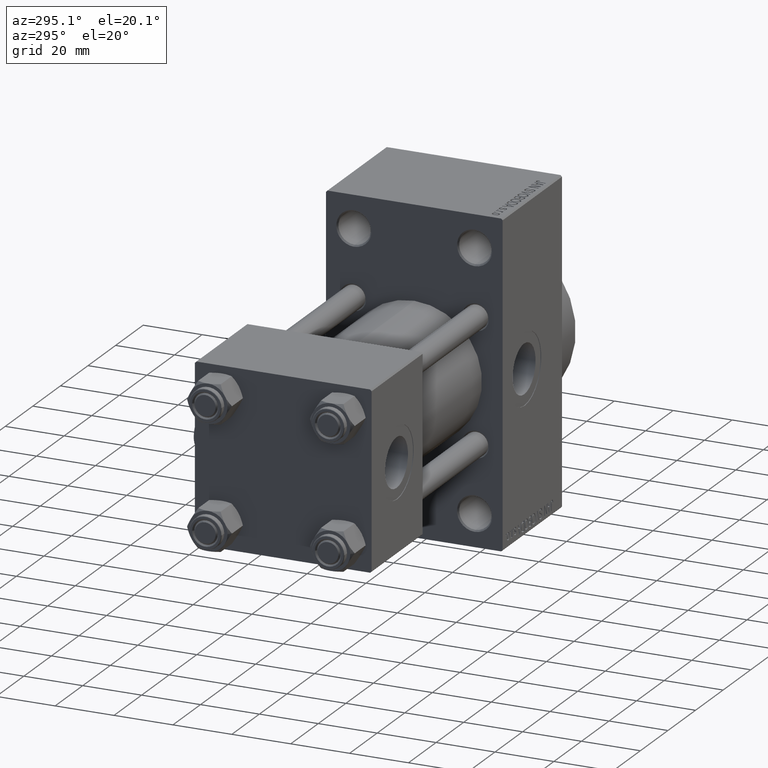
[diagram: clean part render]
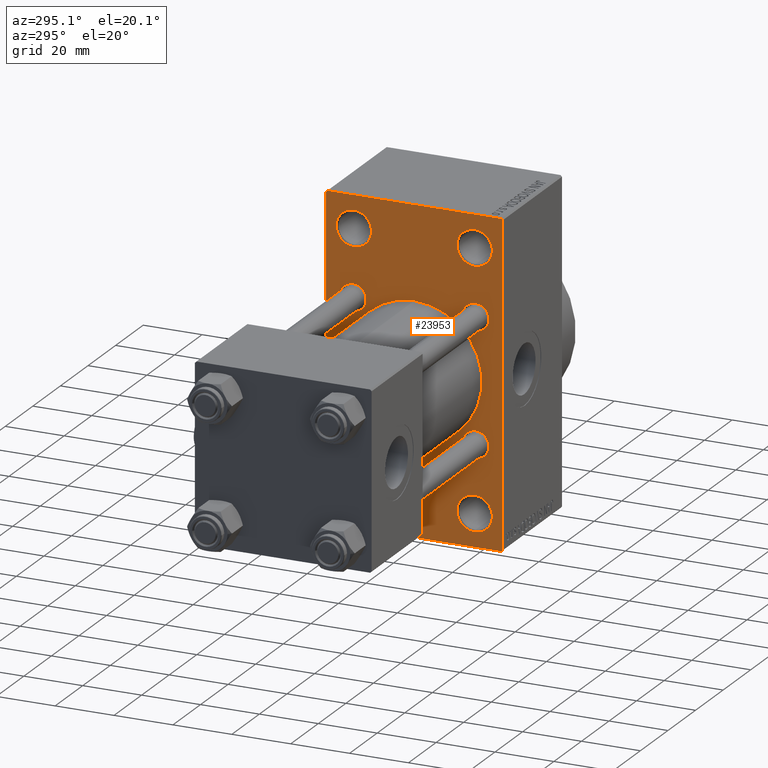
[diagram: same view with one face highlighted and labeled with its STEP entity id]
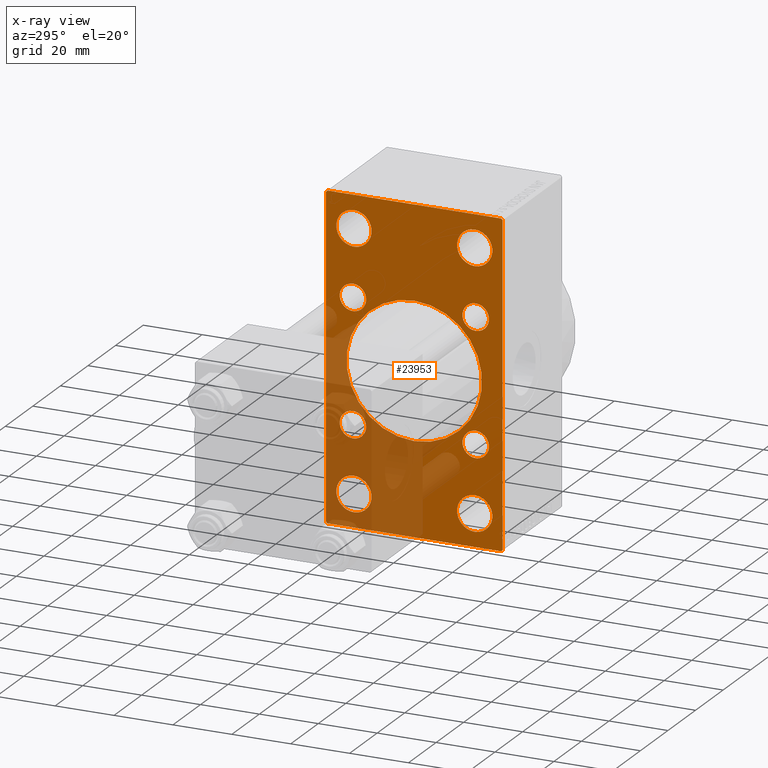
[diagram: x-ray of the same camera — body ghosted, the highlighted face saturated]
A machine part, auxiliary view. The second image highlights one B-rep face of the part: STEP entity #23953.
The next image is the same camera in x-ray: the body ghosted, the highlighted face saturated — about 33% of this face is hidden behind the body in this view.
In plain terms, the highlighted planar face has unit normal (-1, 0, 0).
Its self-contained STEP definition (entity closure, byte-faithful):
#198 = VERTEX_POINT ( 'NONE', #35853 ) ;
#791 = ORIENTED_EDGE ( 'NONE', *, *, #36772, .T. ) ;
#1038 = CARTESIAN_POINT ( 'NONE',  ( 95.00000000000000000, 20.84999999999999787, -20.85000000000000142 ) ) ;
#1324 = DIRECTION ( 'NONE',  ( 0.000000000000000000, 0.000000000000000000, 1.000000000000000000 ) ) ;
#1858 = CARTESIAN_POINT ( 'NONE',  ( 95.00000000000000000, -20.50000000000000000, -43.50000000000000000 ) ) ;
#2257 = EDGE_CURVE ( 'NONE', #32564, #13492, #19038, .T. ) ;
#2283 = CIRCLE ( 'NONE', #48432, 5.999999999999894307 ) ;
#2488 = VERTEX_POINT ( 'NONE', #21745 ) ;
#2534 = EDGE_CURVE ( 'NONE', #38986, #11928, #15234, .T. ) ;
#2563 = DIRECTION ( 'NONE',  ( 0.000000000000000000, 0.000000000000000000, 1.000000000000000000 ) ) ;
#2871 = FACE_BOUND ( 'NONE', #7190, .T. ) ;
#3358 = EDGE_CURVE ( 'NONE', #13213, #8336, #6562, .T. ) ;
#3493 = EDGE_LOOP ( 'NONE', ( #40665, #14927 ) ) ;
#3502 = VERTEX_POINT ( 'NONE', #11264 ) ;
#4005 = FACE_BOUND ( 'NONE', #27206, .T. ) ;
#4120 = VECTOR ( 'NONE', #11021, 1000.000000000000000 ) ;
#4378 = LINE ( 'NONE', #23814, #38313 ) ;
#4781 = DIRECTION ( 'NONE',  ( 1.000000000000000000, -0.000000000000000000, 0.000000000000000000 ) ) ;
#5105 = DIRECTION ( 'NONE',  ( 1.000000000000000000, -0.000000000000000000, 0.000000000000000000 ) ) ;
#5528 = DIRECTION ( 'NONE',  ( 0.000000000000000000, 0.000000000000000000, 1.000000000000000000 ) ) ;
#5676 = CIRCLE ( 'NONE', #48651, 5.999999999999894307 ) ;
#5695 = EDGE_CURVE ( 'NONE', #28085, #11928, #34769, .T. ) ;
#6305 = CARTESIAN_POINT ( 'NONE',  ( 95.00000000000000000, 20.84999999999999787, 20.85000000000000142 ) ) ;
#6562 = CIRCLE ( 'NONE', #26419, 4.500000000000007105 ) ;
#6757 = EDGE_CURVE ( 'NONE', #21369, #23109, #23143, .T. ) ;
#6949 = LINE ( 'NONE', #21895, #8973 ) ;
#7190 = EDGE_LOOP ( 'NONE', ( #48116, #25353 ) ) ;
#7506 = CARTESIAN_POINT ( 'NONE',  ( 95.00000000000000000, -20.84999999999999076, 25.35000000000001208 ) ) ;
#7518 = DIRECTION ( 'NONE',  ( 0.000000000000000000, 0.000000000000000000, 1.000000000000000000 ) ) ;
#7541 = CIRCLE ( 'NONE', #37004, 5.999999999999894307 ) ;
#7826 = CARTESIAN_POINT ( 'NONE',  ( 95.00000000000000000, 29.50000000000002132, 54.49999999999999289 ) ) ;
#7951 = DIRECTION ( 'NONE',  ( 0.000000000000000000, -1.000000000000000000, 1.156482317317871478E-16 ) ) ;
#8117 = CARTESIAN_POINT ( 'NONE',  ( 95.00000000000000000, -42.00000000000051159, -41.99999999999905498 ) ) ;
#8195 = AXIS2_PLACEMENT_3D ( 'NONE', #10559, #25999, #22026 ) ;
#8202 = EDGE_CURVE ( 'NONE', #40655, #38472, #33747, .T. ) ;
#8336 = VERTEX_POINT ( 'NONE', #38558 ) ;
#8551 = ORIENTED_EDGE ( 'NONE', *, *, #3358, .T. ) ;
#8611 = DIRECTION ( 'NONE',  ( 0.000000000000000000, -0.7071067811865352493, 0.7071067811865597852 ) ) ;
#8641 = AXIS2_PLACEMENT_3D ( 'NONE', #1038, #4781, #5528 ) ;
#8973 = VECTOR ( 'NONE', #37334, 1000.000000000000114 ) ;
#9296 = DIRECTION ( 'NONE',  ( 0.000000000000000000, 0.000000000000000000, 1.000000000000000000 ) ) ;
#9300 = DIRECTION ( 'NONE',  ( 1.000000000000000000, -0.000000000000000000, 0.000000000000000000 ) ) ;
#9472 = AXIS2_PLACEMENT_3D ( 'NONE', #48135, #21473, #36659 ) ;
#10049 = CARTESIAN_POINT ( 'NONE',  ( 95.00000000000000000, 20.84999999999999787, -20.85000000000000142 ) ) ;
#10189 = CIRCLE ( 'NONE', #32465, 4.500000000000007105 ) ;
#10264 = CIRCLE ( 'NONE', #9472, 4.500000000000007105 ) ;
#10450 = EDGE_LOOP ( 'NONE', ( #21560, #24466 ) ) ;
#10559 = CARTESIAN_POINT ( 'NONE',  ( 95.00000000000000000, 20.84999999999999787, 20.85000000000000142 ) ) ;
#10590 = FACE_BOUND ( 'NONE', #32353, .T. ) ;
#10691 = CARTESIAN_POINT ( 'NONE',  ( 95.00000000000000000, -20.50000000000000000, 43.50000000000000000 ) ) ;
#10749 = EDGE_CURVE ( 'NONE', #47257, #2488, #46586, .T. ) ;
#10776 = DIRECTION ( 'NONE',  ( 1.000000000000000000, -0.000000000000000000, 0.000000000000000000 ) ) ;
#10906 = AXIS2_PLACEMENT_3D ( 'NONE', #40760, #17835, #33019 ) ;
#10967 = CARTESIAN_POINT ( 'NONE',  ( 95.00000000000000000, 29.99999999999999645, 54.49999999999999289 ) ) ;
#11021 = DIRECTION ( 'NONE',  ( 0.000000000000000000, 0.000000000000000000, -1.000000000000000000 ) ) ;
#11264 = CARTESIAN_POINT ( 'NONE',  ( 95.00000000000000000, 20.84999999999999787, 16.34999999999999432 ) ) ;
#11432 = AXIS2_PLACEMENT_3D ( 'NONE', #6305, #21504, #2563 ) ;
#11497 = DIRECTION ( 'NONE',  ( -0.000000000000000000, 0.000000000000000000, 1.000000000000000000 ) ) ;
#11624 = CARTESIAN_POINT ( 'NONE',  ( 95.00000000000000000, -20.50000000000000000, -37.50000000000009948 ) ) ;
#11766 = CARTESIAN_POINT ( 'NONE',  ( 95.00000000000000000, 29.99999999999999645, 53.99999999999999289 ) ) ;
#11861 = EDGE_LOOP ( 'NONE', ( #41555, #32783, #43535, #44591, #31706, #31384, #38887, #23258 ) ) ;
#11928 = VERTEX_POINT ( 'NONE', #26064 ) ;
#12264 = EDGE_CURVE ( 'NONE', #13492, #26919, #40476, .T. ) ;
#12285 = CIRCLE ( 'NONE', #40137, 5.999999999999894307 ) ;
#12545 = CARTESIAN_POINT ( 'NONE',  ( 95.00000000000000000, -20.50000000000000000, 43.50000000000000000 ) ) ;
#12548 = CARTESIAN_POINT ( 'NONE',  ( 95.00000000000000000, -20.84999999999999076, 16.34999999999999787 ) ) ;
#12793 = CARTESIAN_POINT ( 'NONE',  ( 95.00000000000000000, 20.50000000000000000, -43.50000000000000000 ) ) ;
#12842 = ORIENTED_EDGE ( 'NONE', *, *, #40387, .T. ) ;
#13213 = VERTEX_POINT ( 'NONE', #13818 ) ;
#13214 = DIRECTION ( 'NONE',  ( 0.000000000000000000, 0.000000000000000000, 1.000000000000000000 ) ) ;
#13461 = VERTEX_POINT ( 'NONE', #11624 ) ;
#13492 = VERTEX_POINT ( 'NONE', #30786 ) ;
#13703 = CARTESIAN_POINT ( 'NONE',  ( 95.00000000000000000, -20.50000000000000000, -43.50000000000000000 ) ) ;
#13787 = VECTOR ( 'NONE', #40186, 1000.000000000000000 ) ;
#13818 = CARTESIAN_POINT ( 'NONE',  ( 95.00000000000000000, 20.84999999999999787, -16.34999999999999432 ) ) ;
#14335 = PLANE ( 'NONE',  #40214 ) ;
#14754 = CARTESIAN_POINT ( 'NONE',  ( 95.00000000000000000, -30.00000000000000000, 54.50000000000000000 ) ) ;
#14927 = ORIENTED_EDGE ( 'NONE', *, *, #26883, .T. ) ;
#15120 = CARTESIAN_POINT ( 'NONE',  ( 95.00000000000000000, 20.50000000000000000, 37.50000000000009948 ) ) ;
#15234 = LINE ( 'NONE', #14754, #4120 ) ;
#15472 = FACE_BOUND ( 'NONE', #3493, .T. ) ;
#16504 = DIRECTION ( 'NONE',  ( 1.000000000000000000, -0.000000000000000000, 0.000000000000000000 ) ) ;
#16629 = VERTEX_POINT ( 'NONE', #49267 ) ;
#17016 = CARTESIAN_POINT ( 'NONE',  ( 95.00000000000000000, 42.00000000000082423, 41.99999999999849365 ) ) ;
#17430 = DIRECTION ( 'NONE',  ( 0.000000000000000000, 0.000000000000000000, 1.000000000000000000 ) ) ;
#17690 = DIRECTION ( 'NONE',  ( 1.000000000000000000, -0.000000000000000000, 0.000000000000000000 ) ) ;
#17835 = DIRECTION ( 'NONE',  ( 1.000000000000000000, 0.000000000000000000, 0.000000000000000000 ) ) ;
#17994 = CIRCLE ( 'NONE', #24348, 5.999999999999894307 ) ;
#18018 = DIRECTION ( 'NONE',  ( 0.000000000000000000, 0.000000000000000000, 1.000000000000000000 ) ) ;
#18276 = DIRECTION ( 'NONE',  ( 1.000000000000000000, -0.000000000000000000, 0.000000000000000000 ) ) ;
#18307 = DIRECTION ( 'NONE',  ( 1.000000000000000000, -0.000000000000000000, 0.000000000000000000 ) ) ;
#18568 = EDGE_CURVE ( 'NONE', #38986, #23109, #6949, .T. ) ;
#19038 = LINE ( 'NONE', #26753, #44695 ) ;
#19039 = EDGE_LOOP ( 'NONE', ( #43843, #42153 ) ) ;
#19169 = EDGE_CURVE ( 'NONE', #43734, #3502, #24099, .T. ) ;
#19469 = CARTESIAN_POINT ( 'NONE',  ( 95.00000000000000000, 20.50000000000000000, 49.49999999999989342 ) ) ;
#19592 = DIRECTION ( 'NONE',  ( 0.000000000000000000, -1.000000000000000000, -1.156482317317871478E-16 ) ) ;
#20251 = CIRCLE ( 'NONE', #41838, 4.500000000000007105 ) ;
#20480 = VERTEX_POINT ( 'NONE', #12548 ) ;
#20548 = EDGE_CURVE ( 'NONE', #21369, #32564, #24251, .T. ) ;
#21166 = DIRECTION ( 'NONE',  ( 1.000000000000000000, 0.000000000000000000, 0.000000000000000000 ) ) ;
#21272 = CARTESIAN_POINT ( 'NONE',  ( 95.00000000000000000, -20.84999999999999076, -25.35000000000001208 ) ) ;
#21294 = DIRECTION ( 'NONE',  ( -0.000000000000000000, -0.7071067811865474617, -0.7071067811865474617 ) ) ;
#21369 = VERTEX_POINT ( 'NONE', #7826 ) ;
#21473 = DIRECTION ( 'NONE',  ( 1.000000000000000000, -0.000000000000000000, 0.000000000000000000 ) ) ;
#21504 = DIRECTION ( 'NONE',  ( 1.000000000000000000, -0.000000000000000000, 0.000000000000000000 ) ) ;
#21553 = EDGE_CURVE ( 'NONE', #3502, #43734, #44060, .T. ) ;
#21557 = DIRECTION ( 'NONE',  ( -1.000000000000000000, 0.000000000000000000, -0.000000000000000000 ) ) ;
#21560 = ORIENTED_EDGE ( 'NONE', *, *, #19169, .T. ) ;
#21745 = CARTESIAN_POINT ( 'NONE',  ( 95.00000000000000000, -2.602085213965210642E-15, 23.00000000000000000 ) ) ;
#21753 = DIRECTION ( 'NONE',  ( 1.000000000000000000, -0.000000000000000000, 0.000000000000000000 ) ) ;
#21817 = ORIENTED_EDGE ( 'NONE', *, *, #22548, .T. ) ;
#21873 = CARTESIAN_POINT ( 'NONE',  ( 95.00000000000000000, 2.146024240737012665E-16, -23.00000000000000000 ) ) ;
#21895 = CARTESIAN_POINT ( 'NONE',  ( 95.00000000000000000, -42.00000000000008527, 41.99999999999979394 ) ) ;
#22026 = DIRECTION ( 'NONE',  ( 0.000000000000000000, 0.000000000000000000, 1.000000000000000000 ) ) ;
#22269 = AXIS2_PLACEMENT_3D ( 'NONE', #48939, #18307, #33958 ) ;
#22548 = EDGE_CURVE ( 'NONE', #198, #13461, #12285, .T. ) ;
#22792 = CARTESIAN_POINT ( 'NONE',  ( 95.00000000000000000, 29.49999999999999645, -54.49999999999999289 ) ) ;
#23109 = VERTEX_POINT ( 'NONE', #41629 ) ;
#23143 = LINE ( 'NONE', #10967, #36107 ) ;
#23258 = ORIENTED_EDGE ( 'NONE', *, *, #12264, .T. ) ;
#23814 = CARTESIAN_POINT ( 'NONE',  ( 95.00000000000000000, 29.99999999999999645, -54.49999999999999289 ) ) ;
#23953 = ADVANCED_FACE ( 'NONE', ( #45628, #29517, #44725, #2871, #10590, #41888, #4005, #15472, #40742, #25299 ), #14335, .T. ) ;
#24099 = CIRCLE ( 'NONE', #8195, 4.500000000000007105 ) ;
#24251 = LINE ( 'NONE', #17016, #13787 ) ;
#24305 = AXIS2_PLACEMENT_3D ( 'NONE', #41647, #18276, #7518 ) ;
#24348 = AXIS2_PLACEMENT_3D ( 'NONE', #12545, #47170, #9296 ) ;
#24466 = ORIENTED_EDGE ( 'NONE', *, *, #21553, .T. ) ;
#24787 = DIRECTION ( 'NONE',  ( 0.000000000000000000, 0.000000000000000000, 1.000000000000000000 ) ) ;
#25299 = FACE_OUTER_BOUND ( 'NONE', #11861, .T. ) ;
#25353 = ORIENTED_EDGE ( 'NONE', *, *, #42470, .T. ) ;
#25447 = VERTEX_POINT ( 'NONE', #7506 ) ;
#25837 = AXIS2_PLACEMENT_3D ( 'NONE', #12793, #9300, #1324 ) ;
#25999 = DIRECTION ( 'NONE',  ( 1.000000000000000000, -0.000000000000000000, 0.000000000000000000 ) ) ;
#26064 = CARTESIAN_POINT ( 'NONE',  ( 95.00000000000000000, -30.00000000000000000, -53.99999999999998579 ) ) ;
#26419 = AXIS2_PLACEMENT_3D ( 'NONE', #10049, #21753, #29708 ) ;
#26753 = CARTESIAN_POINT ( 'NONE',  ( 95.00000000000000000, 29.99999999999999645, 54.49999999999999289 ) ) ;
#26762 = CARTESIAN_POINT ( 'NONE',  ( 95.00000000000000000, -20.50000000000000000, 37.50000000000009948 ) ) ;
#26833 = VERTEX_POINT ( 'NONE', #43337 ) ;
#26883 = EDGE_CURVE ( 'NONE', #32499, #26833, #20251, .T. ) ;
#26919 = VERTEX_POINT ( 'NONE', #22792 ) ;
#27206 = EDGE_LOOP ( 'NONE', ( #8551, #12842 ) ) ;
#27424 = AXIS2_PLACEMENT_3D ( 'NONE', #10691, #37095, #17430 ) ;
#27525 = ORIENTED_EDGE ( 'NONE', *, *, #8202, .T. ) ;
#27742 = CIRCLE ( 'NONE', #8641, 4.500000000000007105 ) ;
#27953 = VERTEX_POINT ( 'NONE', #19469 ) ;
#28085 = VERTEX_POINT ( 'NONE', #40127 ) ;
#28557 = DIRECTION ( 'NONE',  ( 0.000000000000000000, 0.000000000000000000, 1.000000000000000000 ) ) ;
#29020 = EDGE_CURVE ( 'NONE', #26833, #32499, #31439, .T. ) ;
#29043 = ORIENTED_EDGE ( 'NONE', *, *, #46590, .T. ) ;
#29517 = FACE_BOUND ( 'NONE', #37886, .T. ) ;
#29708 = DIRECTION ( 'NONE',  ( 0.000000000000000000, 0.000000000000000000, 1.000000000000000000 ) ) ;
#30090 = DIRECTION ( 'NONE',  ( 0.000000000000000000, 0.000000000000000000, -1.000000000000000000 ) ) ;
#30251 = DIRECTION ( 'NONE',  ( 0.000000000000000000, 0.000000000000000000, 1.000000000000000000 ) ) ;
#30533 = CARTESIAN_POINT ( 'NONE',  ( 95.00000000000000000, 20.50000000000000000, -49.49999999999989342 ) ) ;
#30756 = CIRCLE ( 'NONE', #10906, 23.00000000000000000 ) ;
#30765 = VERTEX_POINT ( 'NONE', #30533 ) ;
#30786 = CARTESIAN_POINT ( 'NONE',  ( 95.00000000000000000, 29.99999999999999645, -53.99999999999999289 ) ) ;
#31384 = ORIENTED_EDGE ( 'NONE', *, *, #20548, .T. ) ;
#31439 = CIRCLE ( 'NONE', #24305, 4.500000000000007105 ) ;
#31679 = DIRECTION ( 'NONE',  ( 0.000000000000000000, 0.000000000000000000, 1.000000000000000000 ) ) ;
#31706 = ORIENTED_EDGE ( 'NONE', *, *, #6757, .F. ) ;
#31868 = EDGE_CURVE ( 'NONE', #2488, #47257, #30756, .T. ) ;
#32072 = VECTOR ( 'NONE', #8611, 1000.000000000000000 ) ;
#32353 = EDGE_LOOP ( 'NONE', ( #36557, #791 ) ) ;
#32465 = AXIS2_PLACEMENT_3D ( 'NONE', #44011, #47264, #28557 ) ;
#32499 = VERTEX_POINT ( 'NONE', #21272 ) ;
#32564 = VERTEX_POINT ( 'NONE', #11766 ) ;
#32783 = ORIENTED_EDGE ( 'NONE', *, *, #5695, .T. ) ;
#33019 = DIRECTION ( 'NONE',  ( 0.000000000000000000, 0.000000000000000000, -1.000000000000000000 ) ) ;
#33226 = CARTESIAN_POINT ( 'NONE',  ( 95.00000000000000000, 41.99999999999998579, -41.99999999999998579 ) ) ;
#33747 = CIRCLE ( 'NONE', #27424, 5.999999999999894307 ) ;
#33958 = DIRECTION ( 'NONE',  ( 0.000000000000000000, 0.000000000000000000, 1.000000000000000000 ) ) ;
#33989 = CARTESIAN_POINT ( 'NONE',  ( 95.00000000000000000, -20.84999999999999076, -20.85000000000000497 ) ) ;
#34258 = EDGE_LOOP ( 'NONE', ( #35409, #35413 ) ) ;
#34669 = EDGE_LOOP ( 'NONE', ( #27525, #29043 ) ) ;
#34769 = LINE ( 'NONE', #8117, #32072 ) ;
#34947 = CARTESIAN_POINT ( 'NONE',  ( 95.00000000000000000, 20.84999999999999787, 25.35000000000000853 ) ) ;
#35148 = EDGE_CURVE ( 'NONE', #25447, #20480, #10189, .T. ) ;
#35409 = ORIENTED_EDGE ( 'NONE', *, *, #31868, .T. ) ;
#35413 = ORIENTED_EDGE ( 'NONE', *, *, #10749, .T. ) ;
#35420 = CARTESIAN_POINT ( 'NONE',  ( 95.00000000000000000, 20.50000000000000000, -43.50000000000000000 ) ) ;
#35721 = EDGE_CURVE ( 'NONE', #30765, #16629, #2283, .T. ) ;
#35853 = CARTESIAN_POINT ( 'NONE',  ( 95.00000000000000000, -20.50000000000000000, -49.49999999999989342 ) ) ;
#36107 = VECTOR ( 'NONE', #7951, 1000.000000000000000 ) ;
#36557 = ORIENTED_EDGE ( 'NONE', *, *, #35148, .T. ) ;
#36659 = DIRECTION ( 'NONE',  ( 0.000000000000000000, 0.000000000000000000, 1.000000000000000000 ) ) ;
#36772 = EDGE_CURVE ( 'NONE', #20480, #25447, #10264, .T. ) ;
#37004 = AXIS2_PLACEMENT_3D ( 'NONE', #44905, #10776, #18018 ) ;
#37095 = DIRECTION ( 'NONE',  ( 1.000000000000000000, -0.000000000000000000, 0.000000000000000000 ) ) ;
#37208 = CARTESIAN_POINT ( 'NONE',  ( 95.00000000000000000, -20.50000000000000000, 49.49999999999989342 ) ) ;
#37334 = DIRECTION ( 'NONE',  ( -0.000000000000000000, 0.7071067811865451302, 0.7071067811865500152 ) ) ;
#37886 = EDGE_LOOP ( 'NONE', ( #48864, #21817 ) ) ;
#38195 = VERTEX_POINT ( 'NONE', #15120 ) ;
#38313 = VECTOR ( 'NONE', #19592, 1000.000000000000000 ) ;
#38472 = VERTEX_POINT ( 'NONE', #26762 ) ;
#38558 = CARTESIAN_POINT ( 'NONE',  ( 95.00000000000000000, 20.84999999999999787, -25.35000000000000853 ) ) ;
#38887 = ORIENTED_EDGE ( 'NONE', *, *, #2257, .T. ) ;
#38986 = VERTEX_POINT ( 'NONE', #47125 ) ;
#40127 = CARTESIAN_POINT ( 'NONE',  ( 95.00000000000000000, -29.50000000000000355, -54.50000000000000000 ) ) ;
#40137 = AXIS2_PLACEMENT_3D ( 'NONE', #13703, #17690, #13214 ) ;
#40186 = DIRECTION ( 'NONE',  ( 0.000000000000000000, 0.7071067811865279218, -0.7071067811865671127 ) ) ;
#40214 = AXIS2_PLACEMENT_3D ( 'NONE', #40500, #21557, #11497 ) ;
#40387 = EDGE_CURVE ( 'NONE', #8336, #13213, #27742, .T. ) ;
#40476 = LINE ( 'NONE', #33226, #44929 ) ;
#40500 = CARTESIAN_POINT ( 'NONE',  ( 95.00000000000000000, 0.000000000000000000, 0.000000000000000000 ) ) ;
#40655 = VERTEX_POINT ( 'NONE', #37208 ) ;
#40665 = ORIENTED_EDGE ( 'NONE', *, *, #29020, .T. ) ;
#40742 = FACE_BOUND ( 'NONE', #34258, .T. ) ;
#40760 = CARTESIAN_POINT ( 'NONE',  ( 95.00000000000000000, -2.602085213965210642E-15, 0.000000000000000000 ) ) ;
#41481 = DIRECTION ( 'NONE',  ( 1.000000000000000000, -0.000000000000000000, 0.000000000000000000 ) ) ;
#41555 = ORIENTED_EDGE ( 'NONE', *, *, #44161, .T. ) ;
#41629 = CARTESIAN_POINT ( 'NONE',  ( 95.00000000000000000, -29.49999999999997513, 54.50000000000000000 ) ) ;
#41647 = CARTESIAN_POINT ( 'NONE',  ( 95.00000000000000000, -20.84999999999999076, -20.85000000000000497 ) ) ;
#41751 = CIRCLE ( 'NONE', #25837, 5.999999999999894307 ) ;
#41838 = AXIS2_PLACEMENT_3D ( 'NONE', #33989, #41481, #30251 ) ;
#41888 = FACE_BOUND ( 'NONE', #10450, .T. ) ;
#41952 = DIRECTION ( 'NONE',  ( 0.000000000000000000, 0.000000000000000000, -1.000000000000000000 ) ) ;
#42153 = ORIENTED_EDGE ( 'NONE', *, *, #35721, .T. ) ;
#42470 = EDGE_CURVE ( 'NONE', #38195, #27953, #46142, .T. ) ;
#43337 = CARTESIAN_POINT ( 'NONE',  ( 95.00000000000000000, -20.84999999999999076, -16.34999999999999787 ) ) ;
#43427 = EDGE_CURVE ( 'NONE', #13461, #198, #5676, .T. ) ;
#43535 = ORIENTED_EDGE ( 'NONE', *, *, #2534, .F. ) ;
#43734 = VERTEX_POINT ( 'NONE', #34947 ) ;
#43843 = ORIENTED_EDGE ( 'NONE', *, *, #44718, .T. ) ;
#44011 = CARTESIAN_POINT ( 'NONE',  ( 95.00000000000000000, -20.84999999999999076, 20.85000000000000497 ) ) ;
#44060 = CIRCLE ( 'NONE', #11432, 4.500000000000007105 ) ;
#44161 = EDGE_CURVE ( 'NONE', #26919, #28085, #4378, .T. ) ;
#44591 = ORIENTED_EDGE ( 'NONE', *, *, #18568, .T. ) ;
#44695 = VECTOR ( 'NONE', #41952, 1000.000000000000000 ) ;
#44718 = EDGE_CURVE ( 'NONE', #16629, #30765, #41751, .T. ) ;
#44725 = FACE_BOUND ( 'NONE', #19039, .T. ) ;
#44842 = EDGE_CURVE ( 'NONE', #27953, #38195, #7541, .T. ) ;
#44905 = CARTESIAN_POINT ( 'NONE',  ( 95.00000000000000000, 20.50000000000000000, 43.50000000000000000 ) ) ;
#44929 = VECTOR ( 'NONE', #21294, 1000.000000000000114 ) ;
#45063 = CARTESIAN_POINT ( 'NONE',  ( 95.00000000000000000, -2.602085213965210642E-15, 0.000000000000000000 ) ) ;
#45628 = FACE_BOUND ( 'NONE', #34669, .T. ) ;
#46142 = CIRCLE ( 'NONE', #22269, 5.999999999999894307 ) ;
#46586 = CIRCLE ( 'NONE', #47396, 23.00000000000000000 ) ;
#46590 = EDGE_CURVE ( 'NONE', #38472, #40655, #17994, .T. ) ;
#47125 = CARTESIAN_POINT ( 'NONE',  ( 95.00000000000000000, -30.00000000000000000, 53.99999999999997158 ) ) ;
#47170 = DIRECTION ( 'NONE',  ( 1.000000000000000000, -0.000000000000000000, 0.000000000000000000 ) ) ;
#47257 = VERTEX_POINT ( 'NONE', #21873 ) ;
#47264 = DIRECTION ( 'NONE',  ( 1.000000000000000000, -0.000000000000000000, 0.000000000000000000 ) ) ;
#47396 = AXIS2_PLACEMENT_3D ( 'NONE', #45063, #21166, #30090 ) ;
#48116 = ORIENTED_EDGE ( 'NONE', *, *, #44842, .T. ) ;
#48135 = CARTESIAN_POINT ( 'NONE',  ( 95.00000000000000000, -20.84999999999999076, 20.85000000000000497 ) ) ;
#48432 = AXIS2_PLACEMENT_3D ( 'NONE', #35420, #16504, #31679 ) ;
#48651 = AXIS2_PLACEMENT_3D ( 'NONE', #1858, #5105, #24787 ) ;
#48864 = ORIENTED_EDGE ( 'NONE', *, *, #43427, .T. ) ;
#48939 = CARTESIAN_POINT ( 'NONE',  ( 95.00000000000000000, 20.50000000000000000, 43.50000000000000000 ) ) ;
#49267 = CARTESIAN_POINT ( 'NONE',  ( 95.00000000000000000, 20.50000000000000000, -37.50000000000009948 ) ) ;